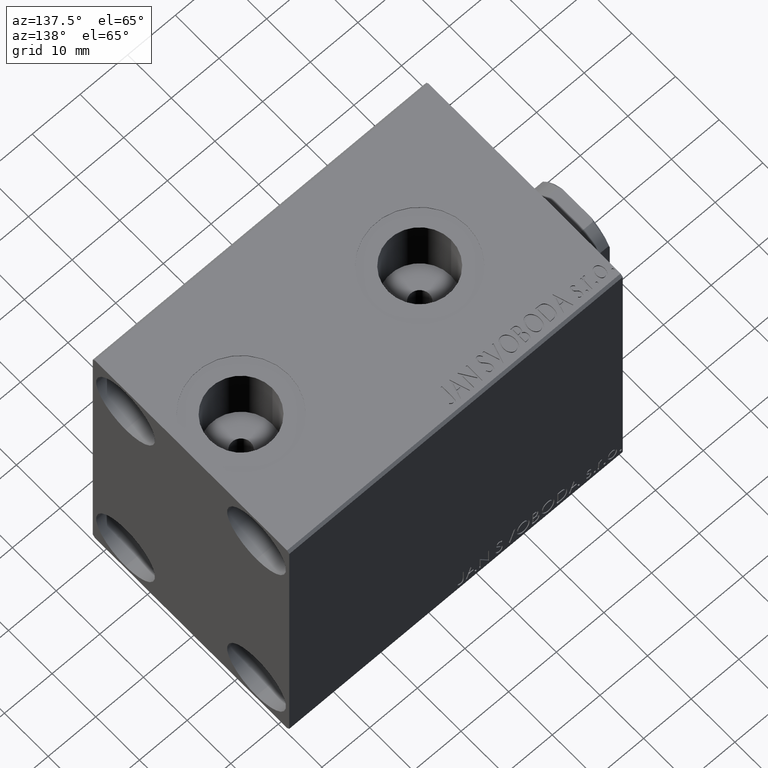
[diagram: clean part render]
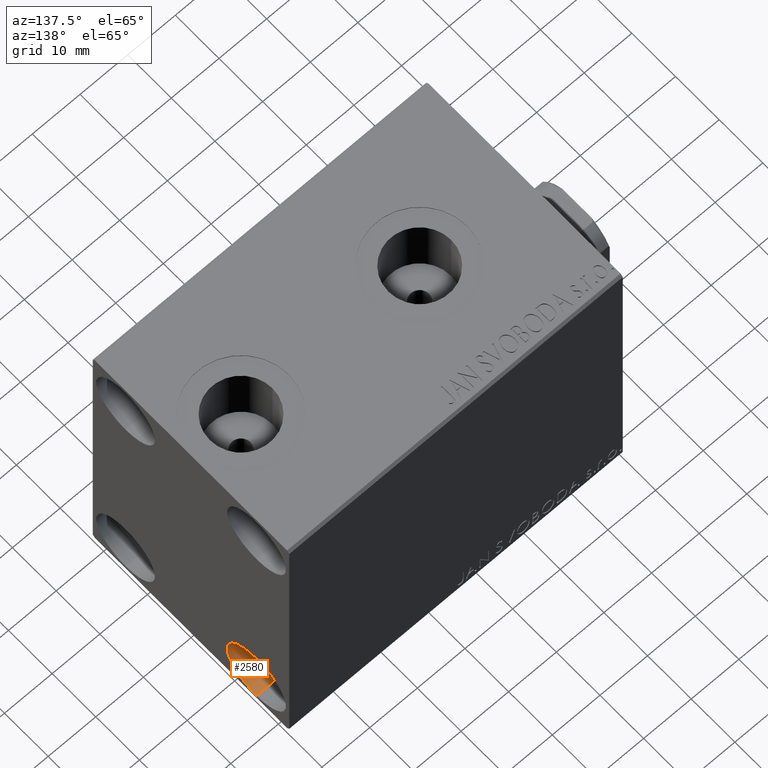
[diagram: same view with one face highlighted and labeled with its STEP entity id]
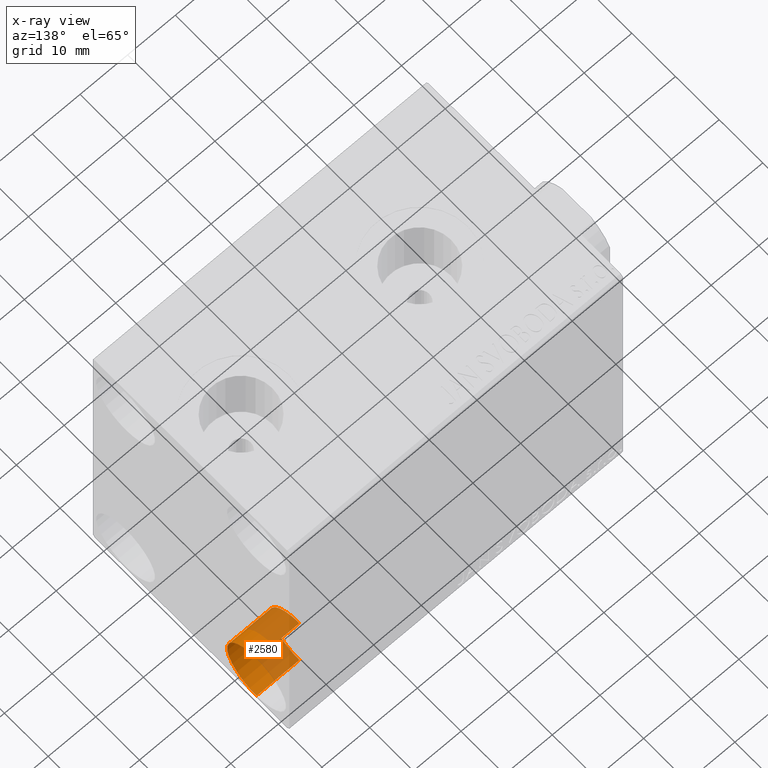
[diagram: x-ray of the same camera — body ghosted, the highlighted face saturated]
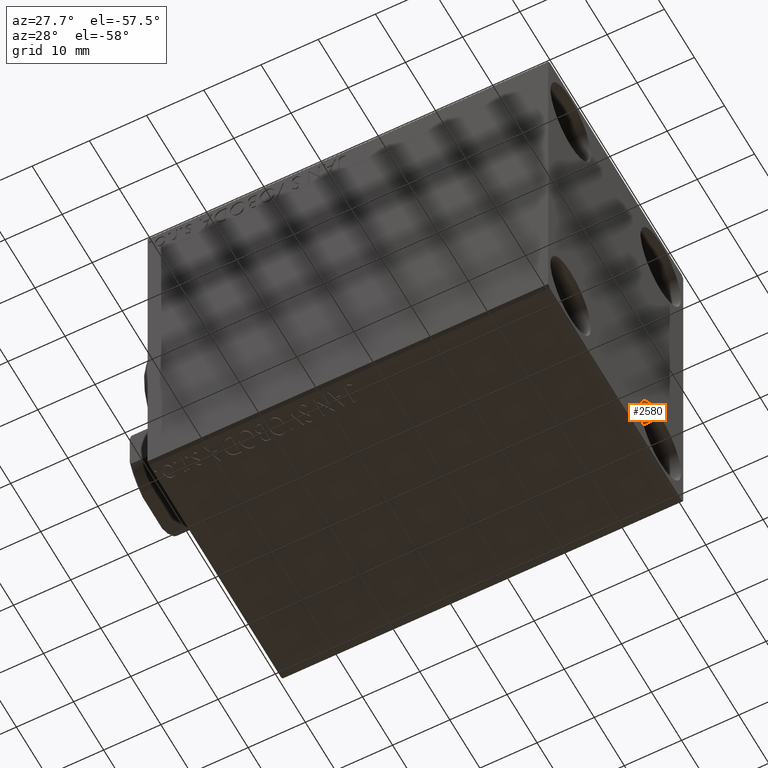
[diagram: same view with one face highlighted and labeled with its STEP entity id]
A machine part, auxiliary view. The second image highlights one B-rep face of the part: STEP entity #2580.
The next image is the same camera in x-ray: the body ghosted, the highlighted face saturated — about 51% of this face is hidden behind the body in this view.
A second angle (auxiliary view) of the same face is appended — the face is thin or edge-on in the first view.
In plain terms, the highlighted cylindrical surface (partial cylindrical patch) has radius 6.75 mm, axis along (1, 0, 0).
Its self-contained STEP definition (entity closure, byte-faithful):
#225 = DIRECTION ( 'NONE',  ( 1.000000000000000000, -0.000000000000000000, -0.000000000000000000 ) ) ;
#325 = VERTEX_POINT ( 'NONE', #13195 ) ;
#1286 = VECTOR ( 'NONE', #17495, 1000.000000000000000 ) ;
#2580 = ADVANCED_FACE ( 'NONE', ( #38002 ), #10635, .F. ) ;
#3998 = LINE ( 'NONE', #20470, #38640 ) ;
#4922 = EDGE_CURVE ( 'NONE', #5438, #325, #3998, .T. ) ;
#5438 = VERTEX_POINT ( 'NONE', #37007 ) ;
#6390 = DIRECTION ( 'NONE',  ( -1.000000000000000000, -0.000000000000000000, -0.000000000000000000 ) ) ;
#7296 = DIRECTION ( 'NONE',  ( 1.000000000000000000, -0.000000000000000000, -0.000000000000000000 ) ) ;
#8707 = CARTESIAN_POINT ( 'NONE',  ( 61.00000000000000711, 14.99999999999999645, -25.00000000000000000 ) ) ;
#8709 = ORIENTED_EDGE ( 'NONE', *, *, #32273, .T. ) ;
#10052 = ORIENTED_EDGE ( 'NONE', *, *, #4922, .F. ) ;
#10635 = CYLINDRICAL_SURFACE ( 'NONE', #29404, 6.749999999999999112 ) ;
#11809 = CARTESIAN_POINT ( 'NONE',  ( 70.00000000000000000, 14.99999999999999645, -18.25000000000000355 ) ) ;
#12271 = DIRECTION ( 'NONE',  ( -1.000000000000000000, -0.000000000000000000, -0.000000000000000000 ) ) ;
#13195 = CARTESIAN_POINT ( 'NONE',  ( 70.00000000000000000, 14.99999999999999645, -31.75000000000000000 ) ) ;
#14452 = CARTESIAN_POINT ( 'NONE',  ( 61.00000000000000711, 14.99999999999999645, -18.25000000000000355 ) ) ;
#14844 = VERTEX_POINT ( 'NONE', #11809 ) ;
#17495 = DIRECTION ( 'NONE',  ( 1.000000000000000000, -0.000000000000000000, -0.000000000000000000 ) ) ;
#20167 = EDGE_CURVE ( 'NONE', #37159, #14844, #24594, .T. ) ;
#20400 = DIRECTION ( 'NONE',  ( 0.000000000000000000, 0.000000000000000000, 1.000000000000000000 ) ) ;
#20470 = CARTESIAN_POINT ( 'NONE',  ( 61.00000000000000711, 14.99999999999999645, -31.75000000000000000 ) ) ;
#20755 = EDGE_LOOP ( 'NONE', ( #8709, #31359, #29816, #10052 ) ) ;
#20866 = DIRECTION ( 'NONE',  ( 0.000000000000000000, 0.000000000000000000, -1.000000000000000000 ) ) ;
#24162 = CARTESIAN_POINT ( 'NONE',  ( 70.00000000000000000, 14.99999999999999645, -25.00000000000000000 ) ) ;
#24196 = CARTESIAN_POINT ( 'NONE',  ( 61.00000000000000711, 14.99999999999999645, -25.00000000000000000 ) ) ;
#24594 = LINE ( 'NONE', #34419, #1286 ) ;
#28733 = EDGE_CURVE ( 'NONE', #325, #14844, #40544, .T. ) ;
#29079 = AXIS2_PLACEMENT_3D ( 'NONE', #24162, #6390, #20400 ) ;
#29404 = AXIS2_PLACEMENT_3D ( 'NONE', #24196, #7296, #20866 ) ;
#29816 = ORIENTED_EDGE ( 'NONE', *, *, #28733, .F. ) ;
#31359 = ORIENTED_EDGE ( 'NONE', *, *, #20167, .T. ) ;
#32273 = EDGE_CURVE ( 'NONE', #5438, #37159, #34868, .T. ) ;
#34419 = CARTESIAN_POINT ( 'NONE',  ( 61.00000000000000711, 14.99999999999999645, -18.25000000000000355 ) ) ;
#34868 = CIRCLE ( 'NONE', #35604, 6.749999999999999112 ) ;
#35604 = AXIS2_PLACEMENT_3D ( 'NONE', #8707, #12271, #43186 ) ;
#37007 = CARTESIAN_POINT ( 'NONE',  ( 61.00000000000000711, 14.99999999999999645, -31.75000000000000000 ) ) ;
#37159 = VERTEX_POINT ( 'NONE', #14452 ) ;
#38002 = FACE_OUTER_BOUND ( 'NONE', #20755, .T. ) ;
#38640 = VECTOR ( 'NONE', #225, 1000.000000000000000 ) ;
#40544 = CIRCLE ( 'NONE', #29079, 6.749999999999999112 ) ;
#43186 = DIRECTION ( 'NONE',  ( 0.000000000000000000, 0.000000000000000000, 1.000000000000000000 ) ) ;